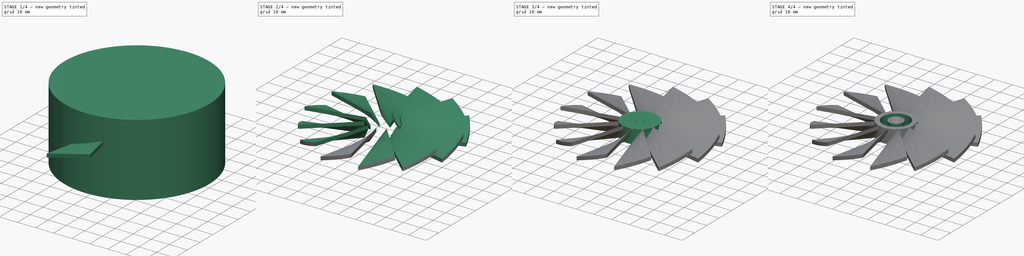
[diagram: build sequence overview — one tinted view per stage of 4, left to right]
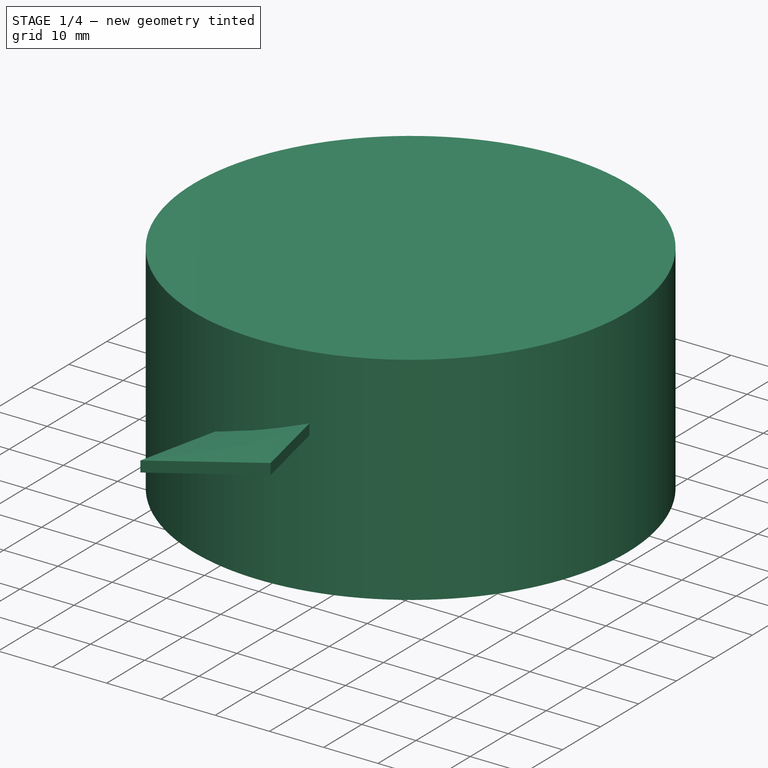
[diagram: stage 1 of 4 — iso view after this stage's code; geometry added in this stage tinted green]
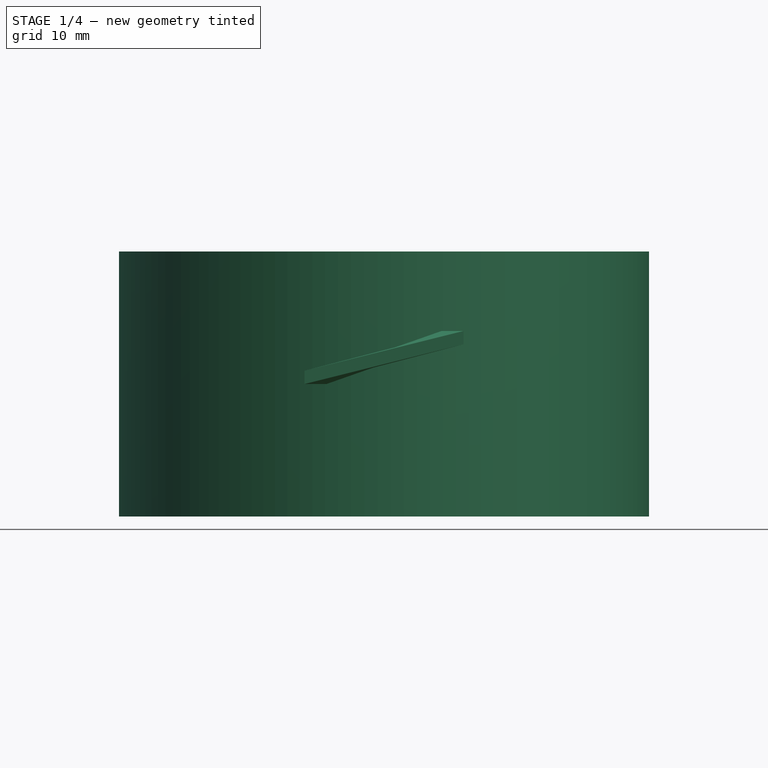
[diagram: stage 1 of 4 — front view after this stage's code; geometry added in this stage tinted green]
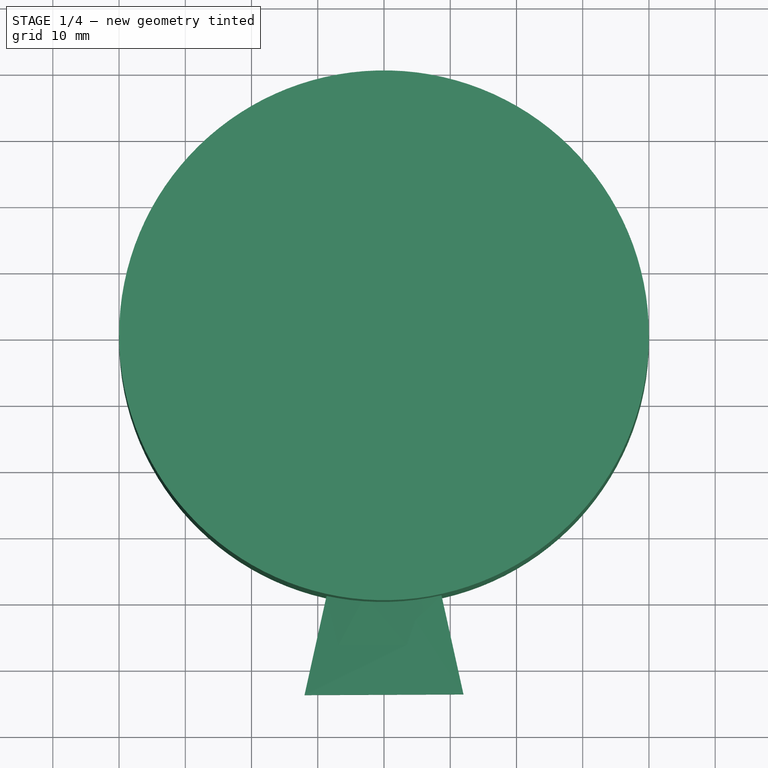
[diagram: stage 1 of 4 — top view after this stage's code; geometry added in this stage tinted green]
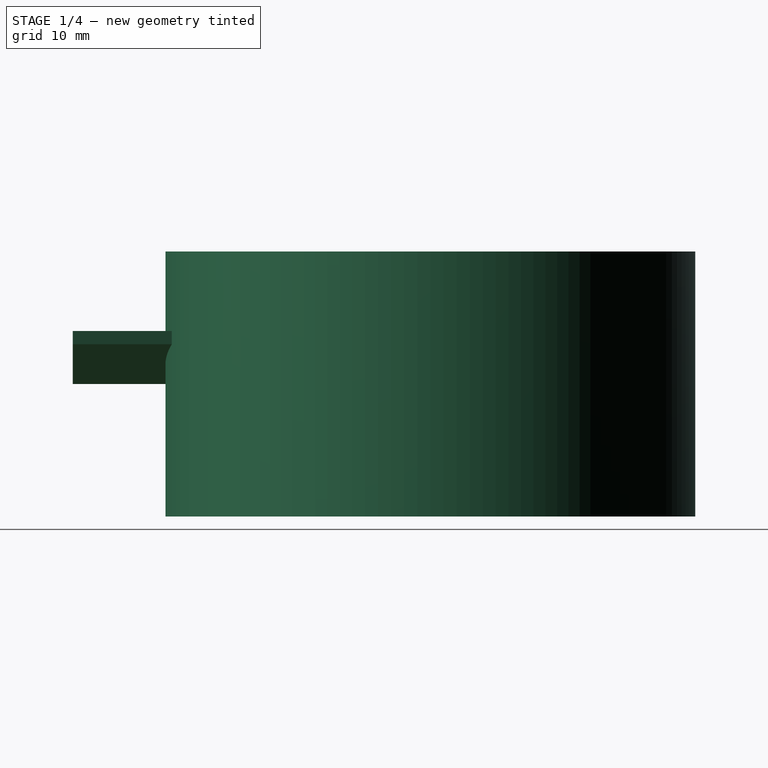
[diagram: stage 1 of 4 — right view after this stage's code; geometry added in this stage tinted green]
FCSTD DOCUMENT  (FreeCAD 0.18.4R)
Label: impeller
License: All rights reserved
LicenseURL: http://en.wikipedia.org/wiki/All_rights_reserved
objects: Sketcher::SketchObject×6, PartDesign::Body×5, PartDesign::FeatureBase×3, PartDesign::Pad×2, PartDesign::SubtractiveCone×2, PartDesign::Pocket×2, Part::Loft×1, Part::FeaturePython×1, Part::Common×1, Part::Fuse×1
note: 30 computed .brp shape members not serialized (recipe doc carries the construction recipe); baked Part::Feature solids carry a one-line shape summary decoded from their .brp

FEATURE [PartDesign::Body] Body  label="center"
  Group = -> [Sketch,Pad,Cone,Cone001]
  Origin = -> Origin
  Tip = -> Cone001
FEATURE [Sketcher::SketchObject] Sketch001
  AttachmentOffset = pos=(0,0,9) rot=(0,0,1;0rad)
  MapMode = 5
  Placement = pos=(0,-9,-2e-15) rot=(1,0,0;1.5708rad)
  Support = -> [XZ_Plane001]
  sketch-geometry (4):
    g0: LineSegment StartX=2 StartY=8 StartZ=0 EndX=2 EndY=6 EndZ=0
    g1: LineSegment StartX=2 StartY=6 StartZ=0 EndX=-2 EndY=0 EndZ=0
    g2: LineSegment StartX=-2 StartY=0 StartZ=0 EndX=-2 EndY=2 EndZ=0
    g3: LineSegment StartX=-2 StartY=2 StartZ=0 EndX=2 EndY=8 EndZ=0
  constraints (12):
    c: Coincident(g0,g1)
    c: Coincident(g1,g2)
    c: Coincident(g2,g3)
    c: Coincident(g3,g0)
    c: DistanceX(g1,g-1) = 2
    c: DistanceX(g2,g-1) = 2
    c: DistanceY(g-1,g1) = 0
    c: DistanceY(g1,g2) = 2
    c: DistanceY(g-1,g0) = 6
    c: DistanceY(g0,g0) = 2
    c: DistanceX(g-1,g0) = 2
    c: DistanceX(g-1,g0) = 2
FEATURE [Sketcher::SketchObject] Sketch002
  AttachmentOffset = pos=(0,0,54) rot=(0,0,1;0rad)
  MapMode = 5
  Placement = pos=(0,-54,-1.2e-14) rot=(1,0,0;1.5708rad)
  Support = -> [XZ_Plane001]
  sketch-geometry (4):
    g0: LineSegment StartX=12 StartY=8 StartZ=0 EndX=12 EndY=6 EndZ=0
    g1: LineSegment StartX=12 StartY=6 StartZ=0 EndX=-12 EndY=0 EndZ=0
    g2: LineSegment StartX=-12 StartY=0 StartZ=0 EndX=-12 EndY=2 EndZ=0
    g3: LineSegment StartX=-12 StartY=2 StartZ=0 EndX=12 EndY=8 EndZ=0
  constraints (12):
    c: Coincident(g0,g1)
    c: Coincident(g1,g2)
    c: Coincident(g2,g3)
    c: Coincident(g3,g0)
    c: DistanceX(g0,g0) = 0
    c: DistanceX(g2,g2) = 0
    c: DistanceX(g-1,g0) = 12
    c: DistanceX(g1,g-1) = 12
    c: DistanceY(g1,g-1) = 0
    c: DistanceY(g2,g1) = -2
    c: DistanceY(g0,g0) = 2
    c: DistanceY(g-1,g0) = 6
FEATURE [Part::Loft] Loft
  Closed = false
  MaxDegree = 5
  Ruled = false
  Sections = -> [Sketch001,Sketch002]
  Solid = true
FEATURE [PartDesign::FeatureBase] BaseFeature
  BaseFeature = -> Loft
FEATURE [PartDesign::Body] Body002
  BaseFeature = -> Array
  Group = -> [BaseFeature001]
  Origin = -> Origin002
  Tip = -> BaseFeature001
FEATURE [Sketcher::SketchObject] Sketch003
  MapMode = 5
  Support = -> [XY_Plane003]
  sketch-geometry (1):
    g0: Circle CenterX=0 CenterY=0 CenterZ=0 NormalX=0 NormalY=0 NormalZ=1 AngleXU=0 Radius=40
  constraints (2):
    c: Coincident(g0,g-1)
    c: Radius(g0) = 40
FEATURE [PartDesign::Pad] Pad001
  Length = 40
  Length2 = 100
  Midplane = true
  Profile = -> Sketch003
  Type = 0
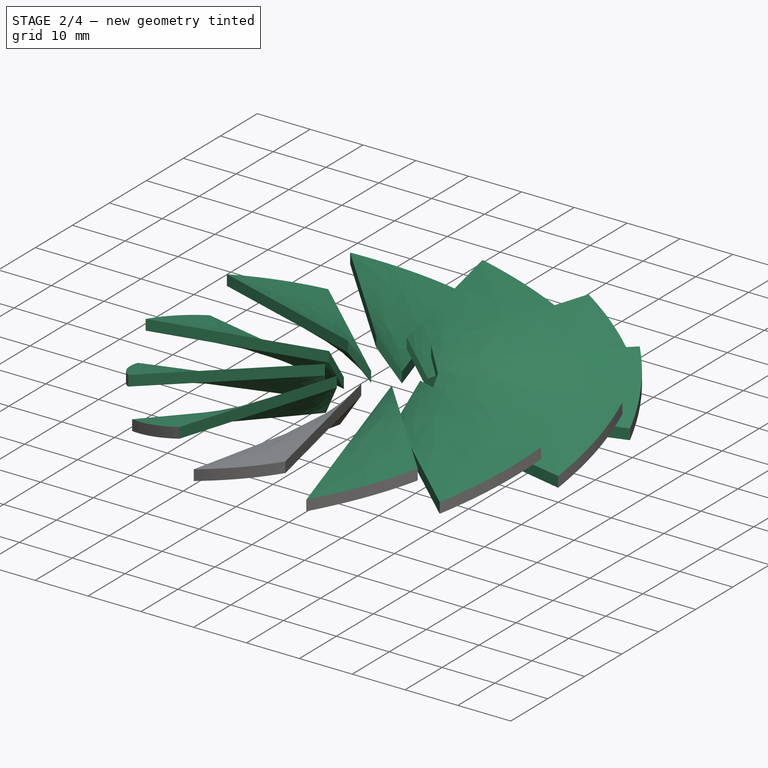
[diagram: stage 2 of 4 — iso view after this stage's code; geometry added in this stage tinted green]
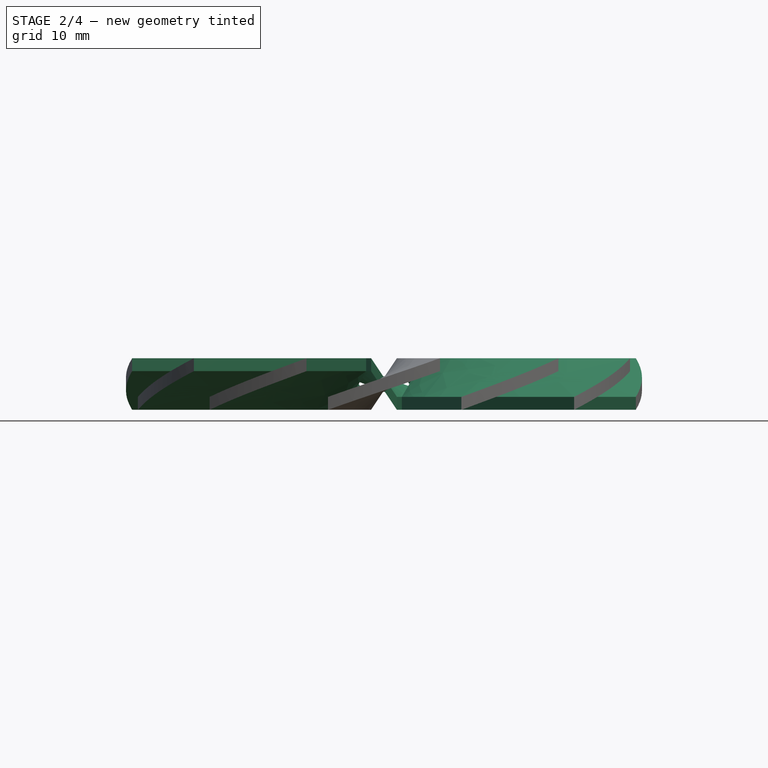
[diagram: stage 2 of 4 — front view after this stage's code; geometry added in this stage tinted green]
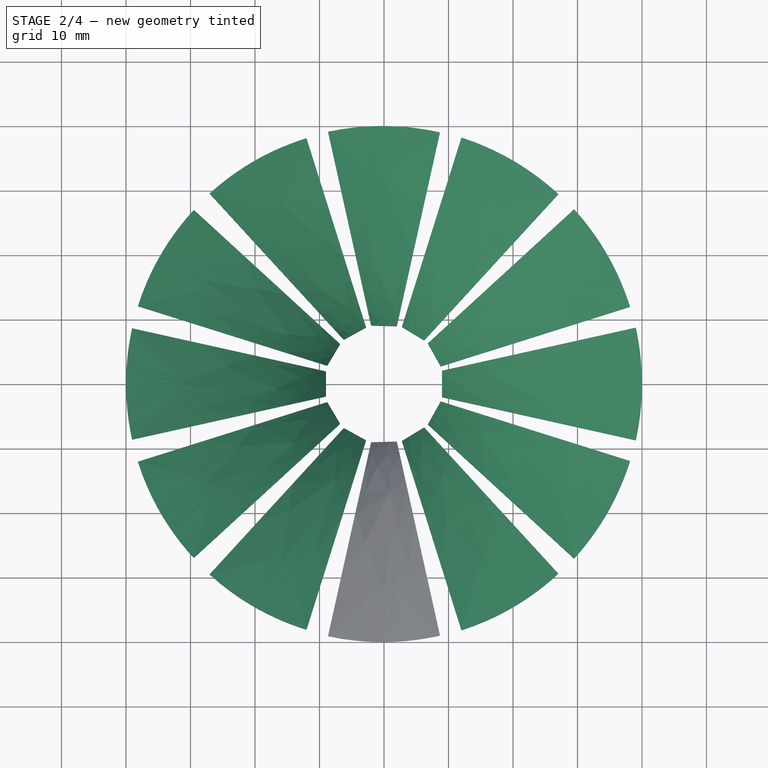
[diagram: stage 2 of 4 — top view after this stage's code; geometry added in this stage tinted green]
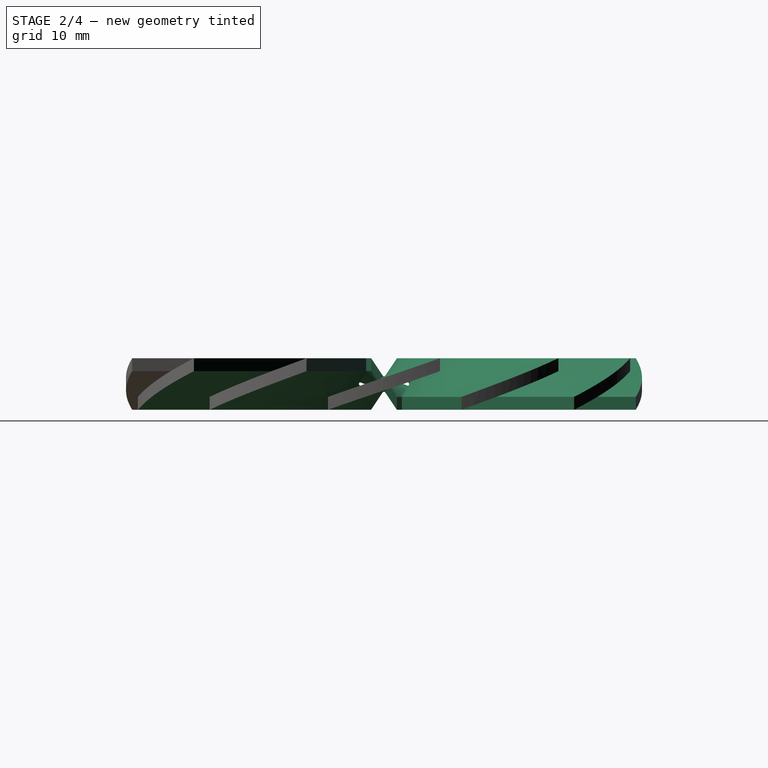
[diagram: stage 2 of 4 — right view after this stage's code; geometry added in this stage tinted green]
FEATURE [PartDesign::Body] Body001  label="blade"
  BaseFeature = -> Loft
  Group = -> [BaseFeature,Sketch001,Sketch002]
  Origin = -> Origin001
  Tip = -> BaseFeature
FEATURE [Part::FeaturePython] Array  # Draft array (typed FeaturePython)
  Angle = 360
  ArrayType = 1
  Axis = (0,0,1)
  Base = -> Body001
  Center = (0,0,0)
  Fuse = false
  IntervalAxis = (0,0,0)
  IntervalX = (1,0,0)
  IntervalY = (0,1,0)
  IntervalZ = (0,0,1)
  NumberPolar = 12
  NumberX = 2
  NumberY = 2
  NumberZ = 1
FEATURE [PartDesign::FeatureBase] BaseFeature001
  BaseFeature = -> Array
FEATURE [PartDesign::Body] Body003
  Group = -> [Sketch003,Pad001]
  Origin = -> Origin003
  Tip = -> Pad001
FEATURE [Part::Common] Common  label="blades"
  Base = -> Body002
  Tool = -> Body003
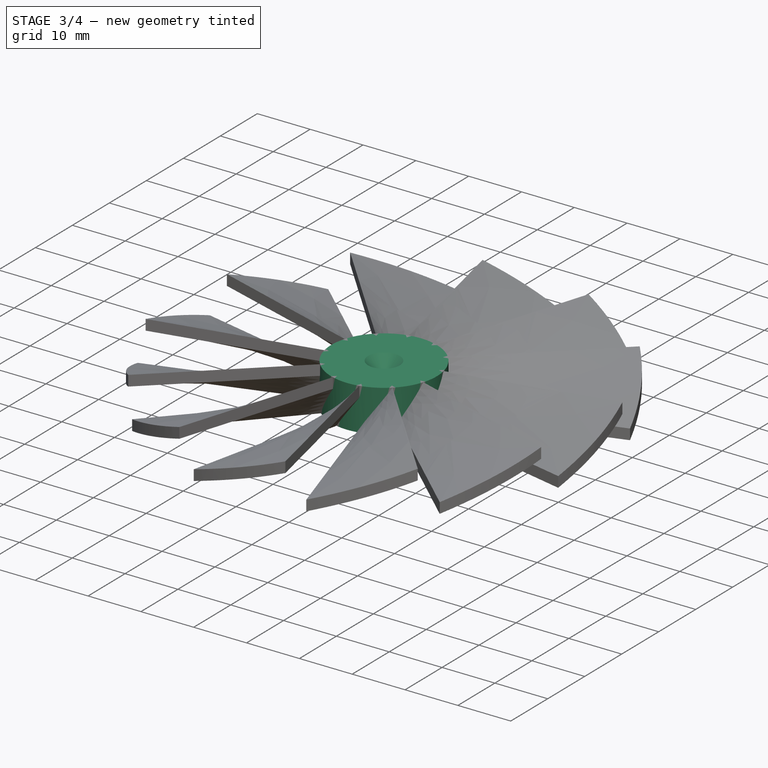
[diagram: stage 3 of 4 — iso view after this stage's code; geometry added in this stage tinted green]
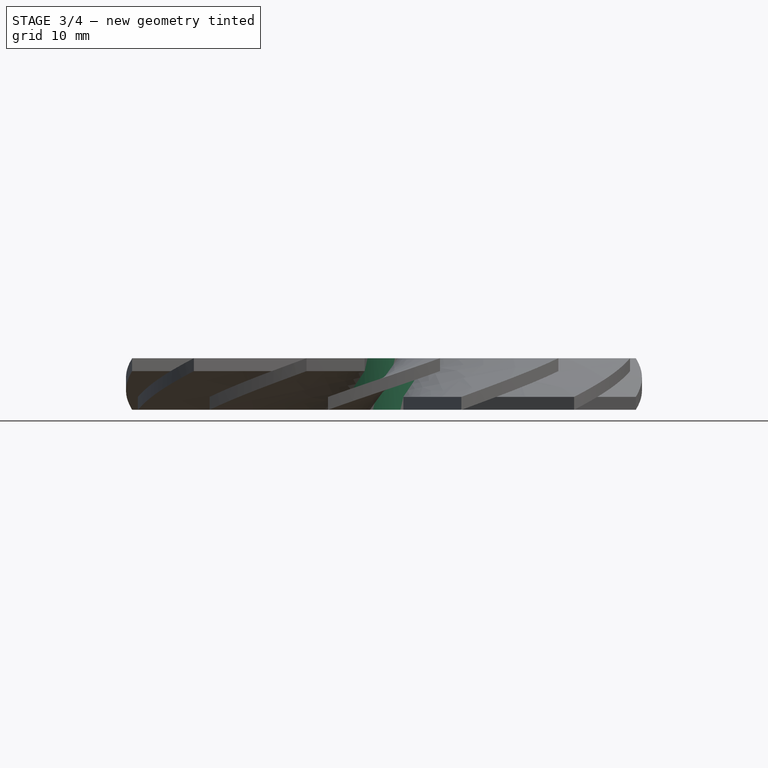
[diagram: stage 3 of 4 — front view after this stage's code; geometry added in this stage tinted green]
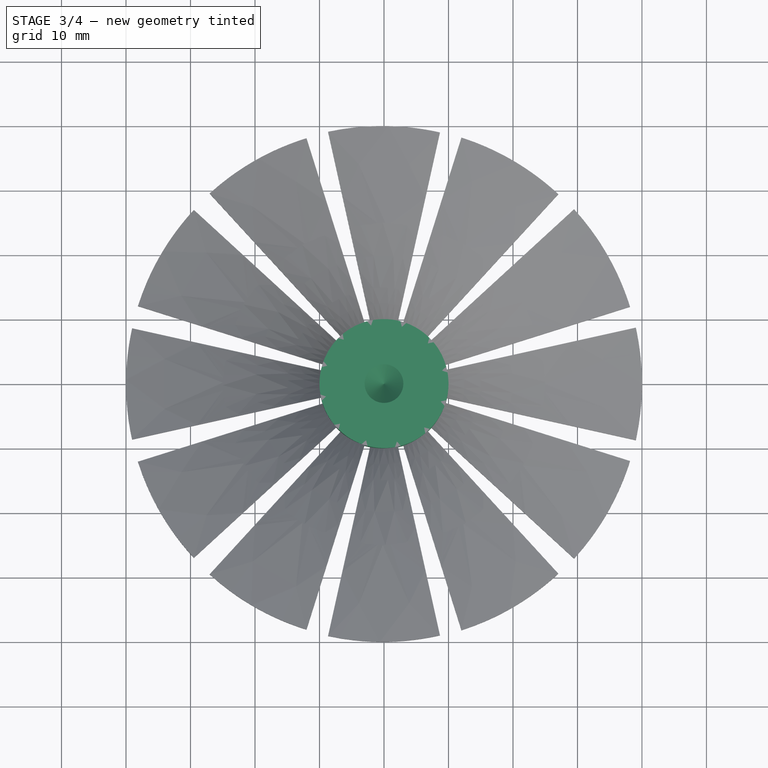
[diagram: stage 3 of 4 — top view after this stage's code; geometry added in this stage tinted green]
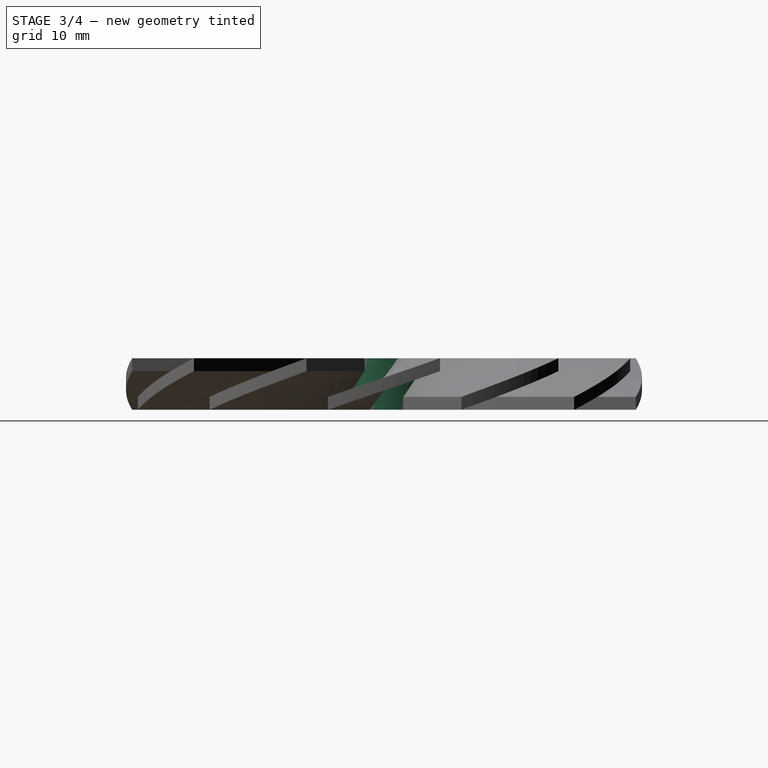
[diagram: stage 3 of 4 — right view after this stage's code; geometry added in this stage tinted green]
FEATURE [Sketcher::SketchObject] Sketch
  MapMode = 5
  Support = -> [XY_Plane]
  sketch-geometry (1):
    g0: Circle CenterX=0 CenterY=0 CenterZ=0 NormalX=0 NormalY=0 NormalZ=1 AngleXU=0 Radius=10
  constraints (2):
    c: Radius(g0) = 10
    c: Coincident(g0,g-1)
FEATURE [PartDesign::Pad] Pad
  Length = 8
  Length2 = 100
  Profile = -> Sketch
  Type = 0
FEATURE [PartDesign::SubtractiveCone] Cone
  Angle = 360
  AttacherType = Attacher::AttachEngine3D
  AttachmentOffset = pos=(0,0,-3) rot=(0,0,1;0rad)
  BaseFeature = -> Pad
  Height = 3
  MapMode = 5
  Placement = pos=(0,0,3) rot=(1,0,0;3.14159rad)
  Radius1 = 0
  Radius2 = 3
  Support = -> [Pad]
FEATURE [PartDesign::SubtractiveCone] Cone001
  Angle = 360
  AttacherType = Attacher::AttachEngine3D
  AttachmentOffset = pos=(0,0,-3) rot=(0,0,1;0rad)
  BaseFeature = -> Cone
  Height = 3
  MapMode = 5
  Placement = pos=(0,-2e-16,5) rot=(0,0,1;0rad)
  Radius1 = 0
  Radius2 = 3
  Support = -> [Cone]
FEATURE [Part::Fuse] Fusion  label="impeller-body"
  Base = -> Body
  Tool = -> Common
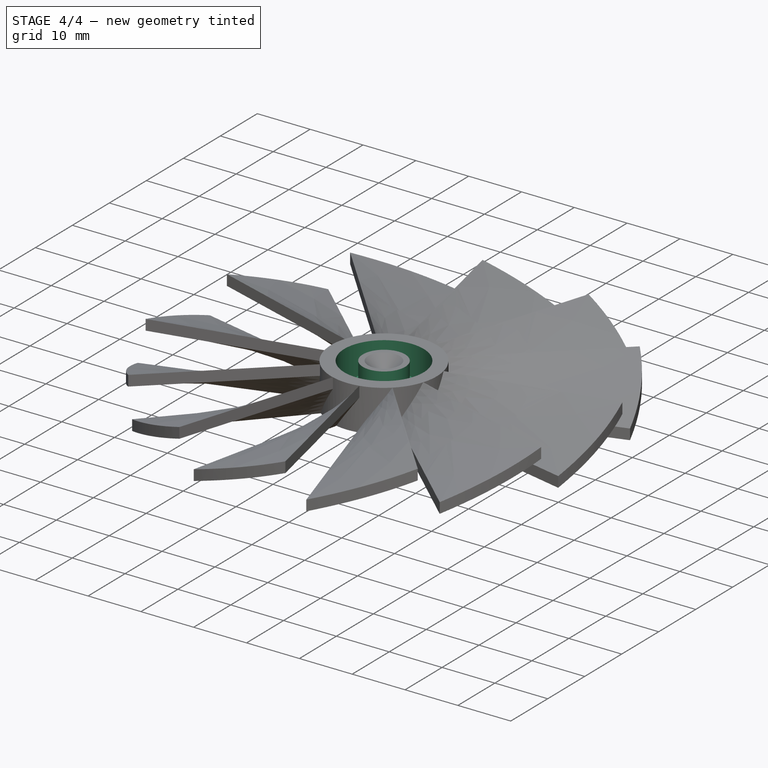
[diagram: stage 4 of 4 — iso view after this stage's code; geometry added in this stage tinted green]
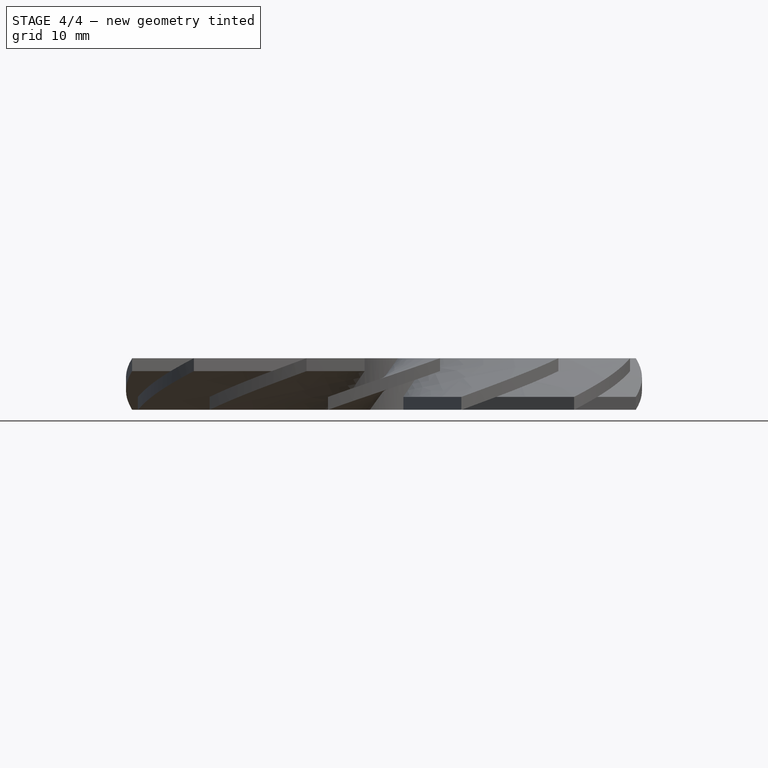
[diagram: stage 4 of 4 — front view after this stage's code; geometry added in this stage tinted green]
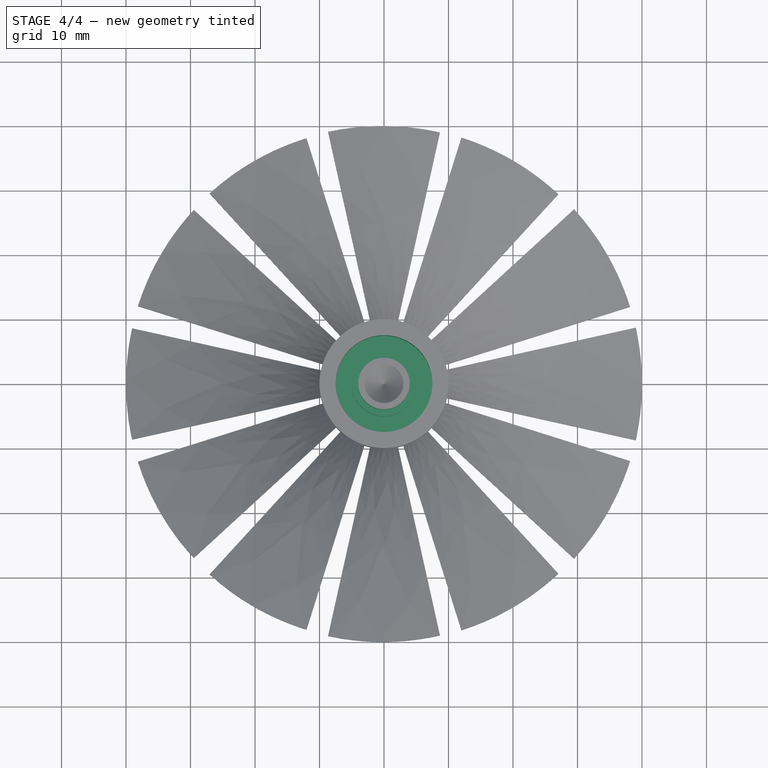
[diagram: stage 4 of 4 — top view after this stage's code; geometry added in this stage tinted green]
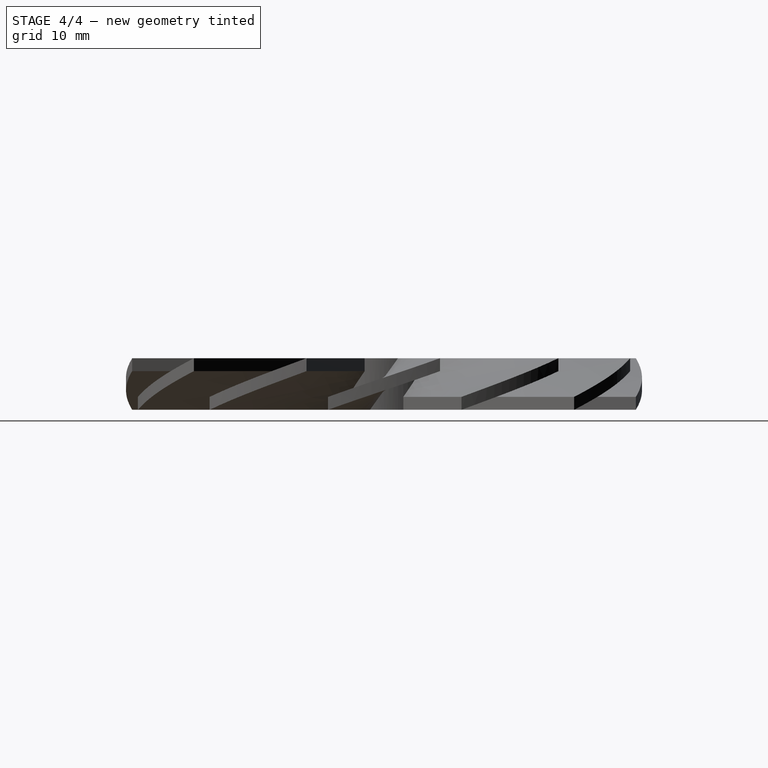
[diagram: stage 4 of 4 — right view after this stage's code; geometry added in this stage tinted green]
FEATURE [PartDesign::FeatureBase] BaseFeature002
  BaseFeature = -> Fusion
FEATURE [Sketcher::SketchObject] Sketch004
  MapMode = 5
  Placement = pos=(0,-1.9e-15,8) rot=(0,0,1;0rad)
  Support = -> [BaseFeature002]
  sketch-geometry (2):
    g0: Circle CenterX=0 CenterY=0 CenterZ=0 NormalX=0 NormalY=0 NormalZ=1 AngleXU=0 Radius=7.5
    g1: Circle CenterX=0 CenterY=0 CenterZ=0 NormalX=0 NormalY=0 NormalZ=1 AngleXU=0 Radius=5
  constraints (4):
    c: Coincident(g-1,g0)
    c: Coincident(g0,g1)
    c: Radius(g0) = 7.5
    c: Radius(g1) = 5
FEATURE [PartDesign::Pocket] Pocket
  BaseFeature = -> BaseFeature002
  Length = 6
  Length2 = 100
  Profile = -> Sketch004
  Type = 0
FEATURE [Sketcher::SketchObject] Sketch005
  MapMode = 5
  Placement = pos=(0,-1.9e-15,8) rot=(0,0,1;0rad)
  Support = -> [Pocket]
  sketch-geometry (2):
    g0: Circle CenterX=0 CenterY=0 CenterZ=0 NormalX=0 NormalY=0 NormalZ=1 AngleXU=0 Radius=4
    g1: Circle CenterX=0 CenterY=0 CenterZ=0 NormalX=0 NormalY=0 NormalZ=1 AngleXU=0 Radius=5
  constraints (4):
    c: Coincident(g0,g-1)
    c: Coincident(g1,g0)
    c: Radius(g1) = 5
    c: Radius(g0) = 4
FEATURE [PartDesign::Pocket] Pocket001
  BaseFeature = -> Pocket
  Length = 4
  Length2 = 100
  Profile = -> Sketch005
  Type = 0
FEATURE [PartDesign::Body] Body004  label="impeller"
  BaseFeature = -> Fusion
  Group = -> [BaseFeature002,Sketch004,Pocket,Sketch005,Pocket001]
  Origin = -> Origin004
  Tip = -> Pocket001
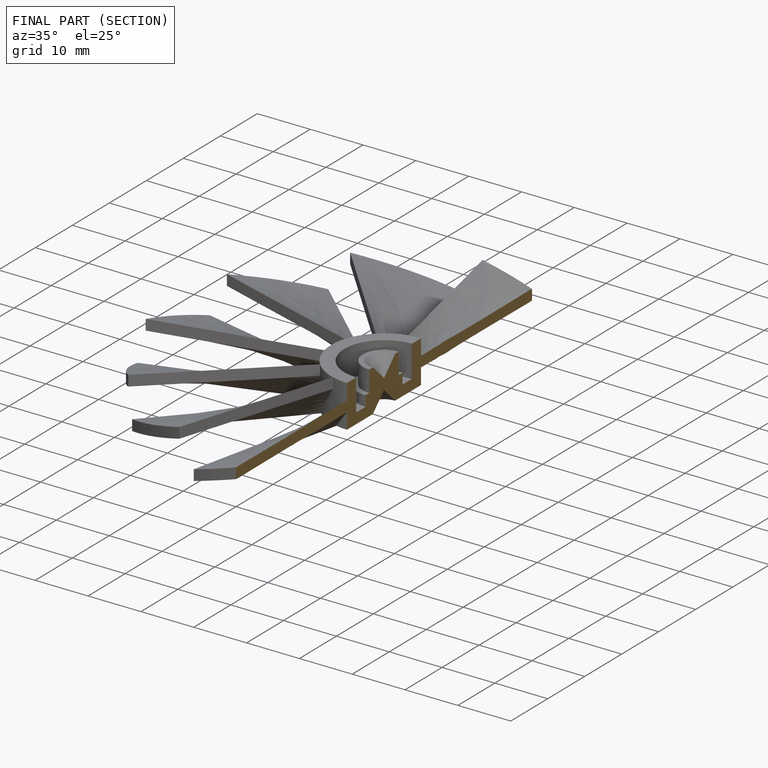
[diagram: finished part — half-section view (interior)]
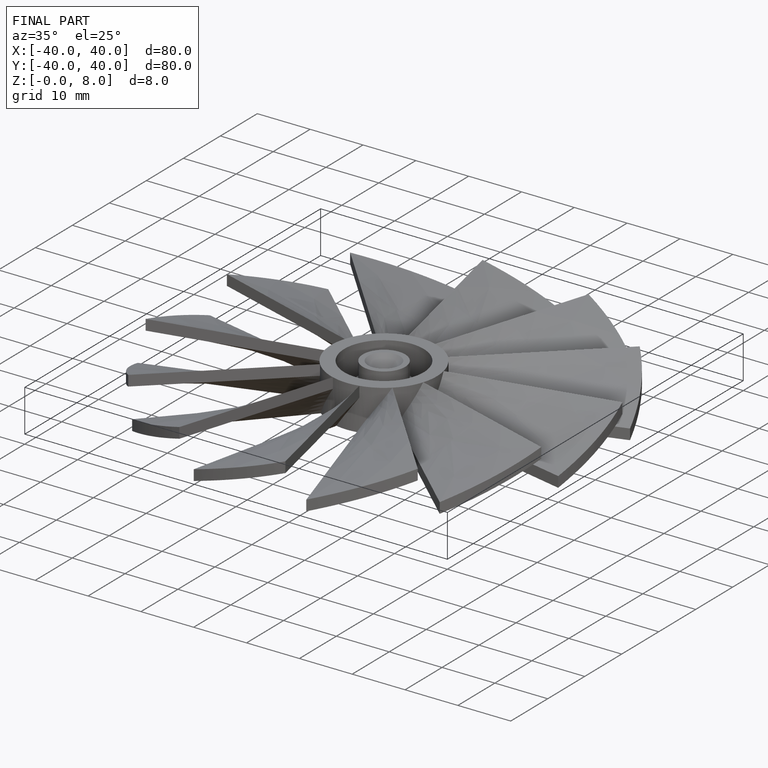
[diagram: finished part — iso view with bounding-box wireframe]
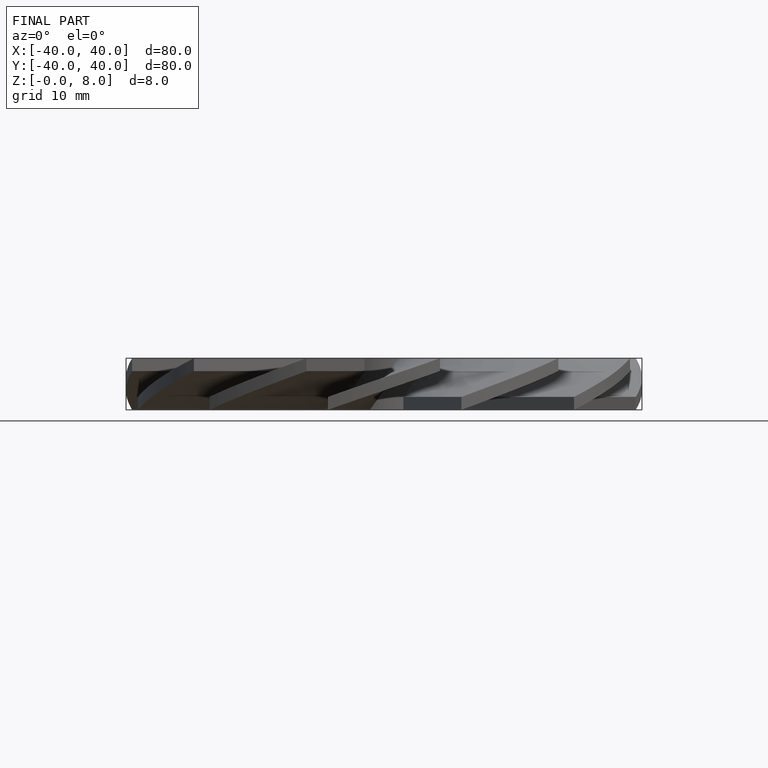
[diagram: finished part — front view with bounding-box wireframe]
